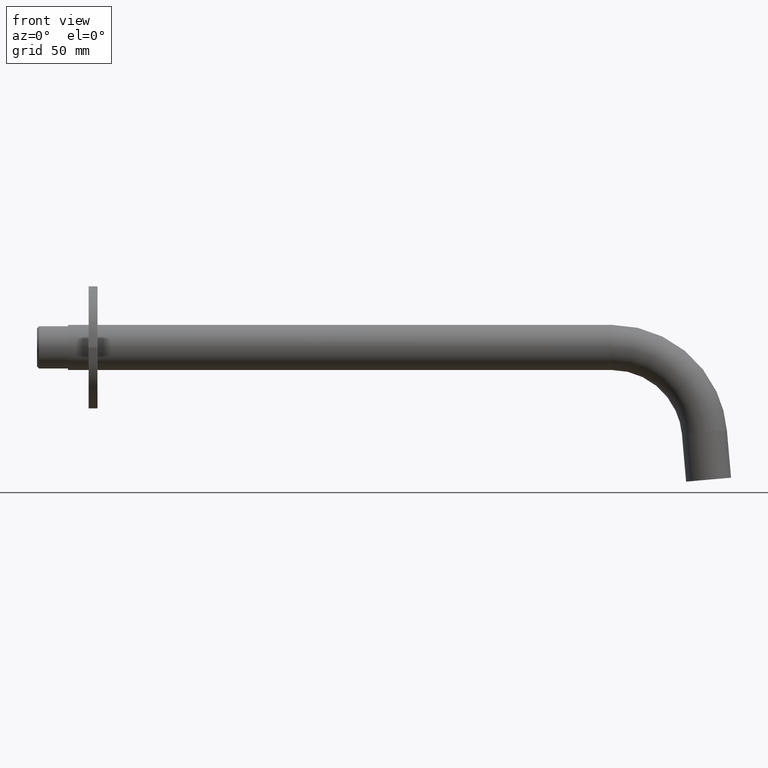
[diagram: clean part render]
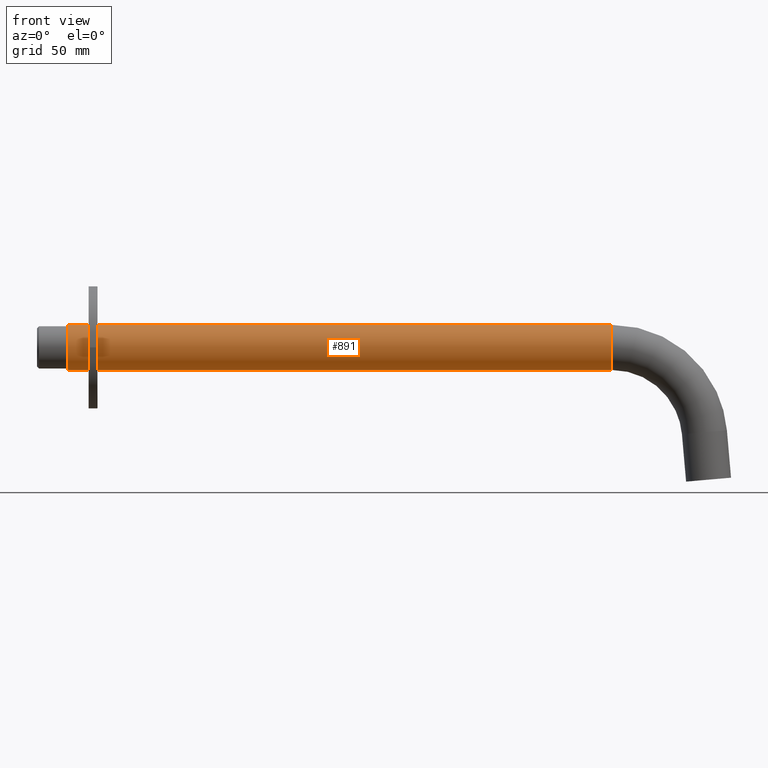
[diagram: same view with one face highlighted and labeled with its STEP entity id]
A machine part, front view. The second image highlights one B-rep face of the part: STEP entity #891.
In plain terms, the highlighted cylindrical surface (bore or boss wall) has radius 11 mm, axis along (1, 0, 0).
Its self-contained STEP definition (entity closure, byte-faithful):
#149=CYLINDRICAL_SURFACE('',#975,11.);
#174=VERTEX_POINT('',#1098);
#182=VERTEX_POINT('',#1120);
#261=CIRCLE('',#959,11.);
#269=CIRCLE('',#973,11.);
#324=EDGE_CURVE('',#174,#174,#261,.T.);
#332=EDGE_CURVE('',#182,#182,#269,.T.);
#447=ORIENTED_EDGE('',*,*,#324,.T.);
#448=ORIENTED_EDGE('',*,*,#332,.T.);
#657=EDGE_LOOP('',(#447));
#658=EDGE_LOOP('',(#448));
#779=FACE_BOUND('',#657,.T.);
#780=FACE_BOUND('',#658,.T.);
#891=ADVANCED_FACE('',(#779,#780),#149,.T.);
#959=AXIS2_PLACEMENT_3D('',#1097,#1362,#1363);
#973=AXIS2_PLACEMENT_3D('',#1119,#1388,#1389);
#975=AXIS2_PLACEMENT_3D('',#1122,#1392,#1393);
#1097=CARTESIAN_POINT('',(-98.7261744394973,-15.2,45.5441663368121));
#1098=CARTESIAN_POINT('',(-98.7261744394973,-4.19999999999981,45.5441663368121));
#1119=CARTESIAN_POINT('',(164.439648264056,-15.2,45.5441663368121));
#1120=CARTESIAN_POINT('',(164.439648264056,-4.19999999999981,45.5441663368121));
#1122=CARTESIAN_POINT('',(-25.7261744394973,-15.2,45.5441663368121));
#1362=DIRECTION('',(1.,0.,0.));
#1363=DIRECTION('',(0.,11.,0.));
#1388=DIRECTION('',(-1.,0.,0.));
#1389=DIRECTION('',(0.,11.,0.));
#1392=DIRECTION('',(1.,0.,0.));
#1393=DIRECTION('',(0.,11.,0.));